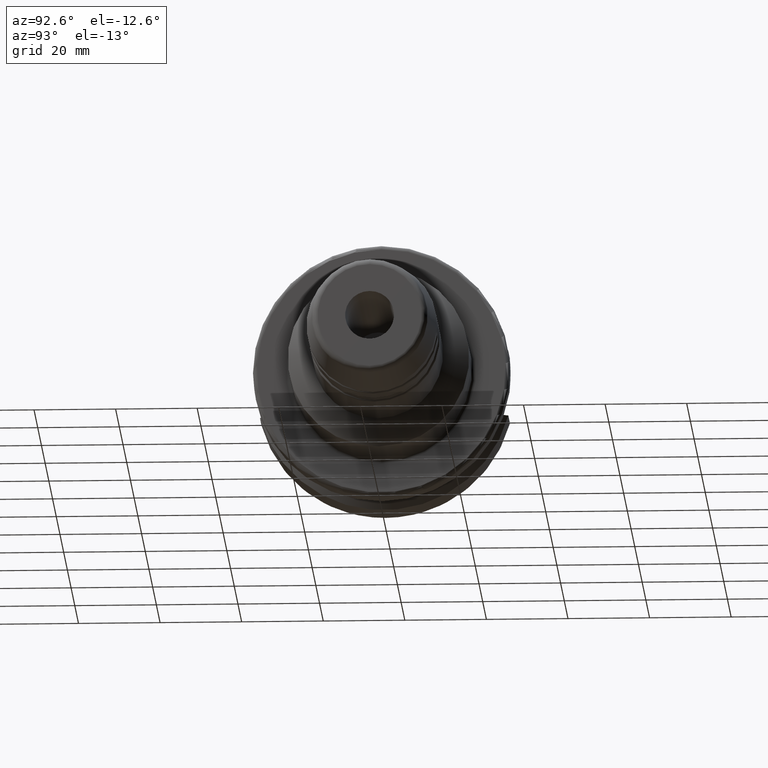
[diagram: clean part render]
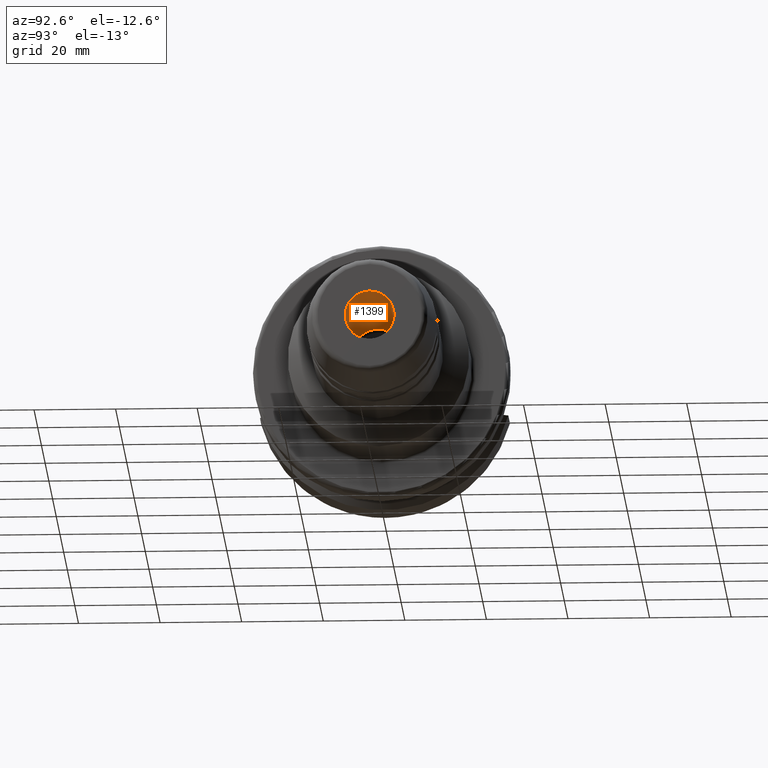
[diagram: same view with one face highlighted and labeled with its STEP entity id]
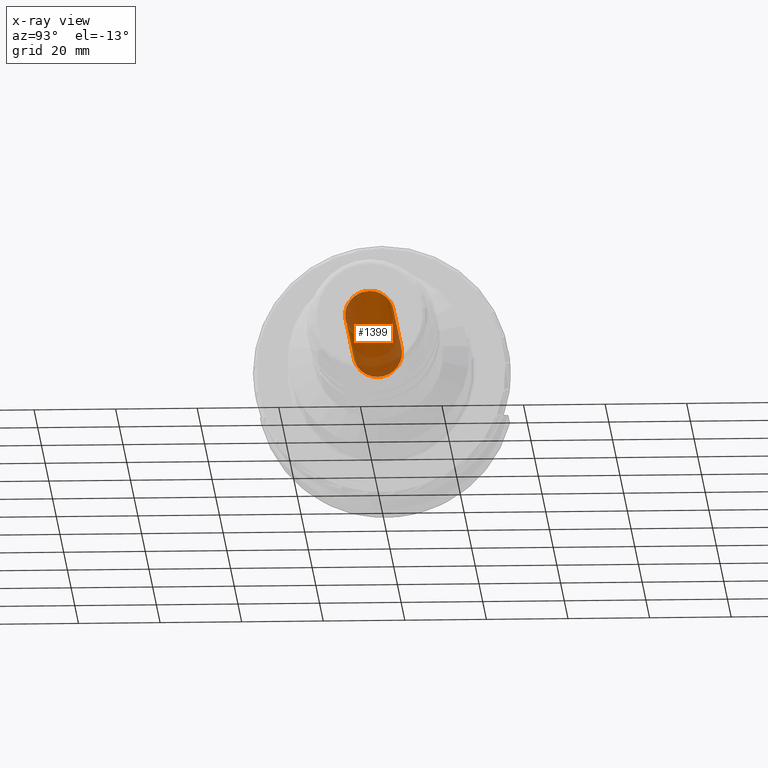
[diagram: x-ray of the same camera — body ghosted, the highlighted face saturated]
A machine part, auxiliary view. The second image highlights one B-rep face of the part: STEP entity #1399.
The next image is the same camera in x-ray: the body ghosted, the highlighted face saturated — about 27% of this face is hidden behind the body in this view.
In plain terms, the highlighted cylindrical surface (bore or boss wall) has radius 6 mm, axis along (1, 0, 0).
Its self-contained STEP definition (entity closure, byte-faithful):
#135=FACE_OUTER_BOUND('',#226,.T.);
#226=EDGE_LOOP('',(#1027,#1028,#1029,#1030));
#340=LINE('',#2368,#411);
#411=VECTOR('',#1844,6.);
#502=CIRCLE('',#1541,6.);
#510=CIRCLE('',#1554,6.);
#595=VERTEX_POINT('',#2347);
#601=VERTEX_POINT('',#2367);
#752=EDGE_CURVE('',#595,#595,#502,.T.);
#761=EDGE_CURVE('',#595,#601,#340,.T.);
#762=EDGE_CURVE('',#601,#601,#510,.T.);
#1027=ORIENTED_EDGE('',*,*,#752,.T.);
#1028=ORIENTED_EDGE('',*,*,#761,.T.);
#1029=ORIENTED_EDGE('',*,*,#762,.F.);
#1030=ORIENTED_EDGE('',*,*,#761,.F.);
#1347=CYLINDRICAL_SURFACE('',#1553,6.);
#1399=ADVANCED_FACE('',(#135),#1347,.F.);
#1541=AXIS2_PLACEMENT_3D('',#2348,#1817,#1818);
#1553=AXIS2_PLACEMENT_3D('',#2366,#1842,#1843);
#1554=AXIS2_PLACEMENT_3D('',#2369,#1845,#1846);
#1817=DIRECTION('center_axis',(1.,0.,0.));
#1818=DIRECTION('ref_axis',(0.,0.,-1.));
#1842=DIRECTION('center_axis',(1.,0.,0.));
#1843=DIRECTION('ref_axis',(0.,0.,-1.));
#1844=DIRECTION('',(-1.,0.,0.));
#1845=DIRECTION('center_axis',(1.,0.,0.));
#1846=DIRECTION('ref_axis',(0.,0.,-1.));
#2347=CARTESIAN_POINT('',(90.,-7.34788079488412E-16,6.));
#2348=CARTESIAN_POINT('Origin',(90.,0.,0.));
#2366=CARTESIAN_POINT('Origin',(68.5,0.,0.));
#2367=CARTESIAN_POINT('',(47.,-7.34788079488412E-16,6.));
#2368=CARTESIAN_POINT('',(68.5,-7.34788079488412E-16,6.));
#2369=CARTESIAN_POINT('Origin',(47.,0.,0.));